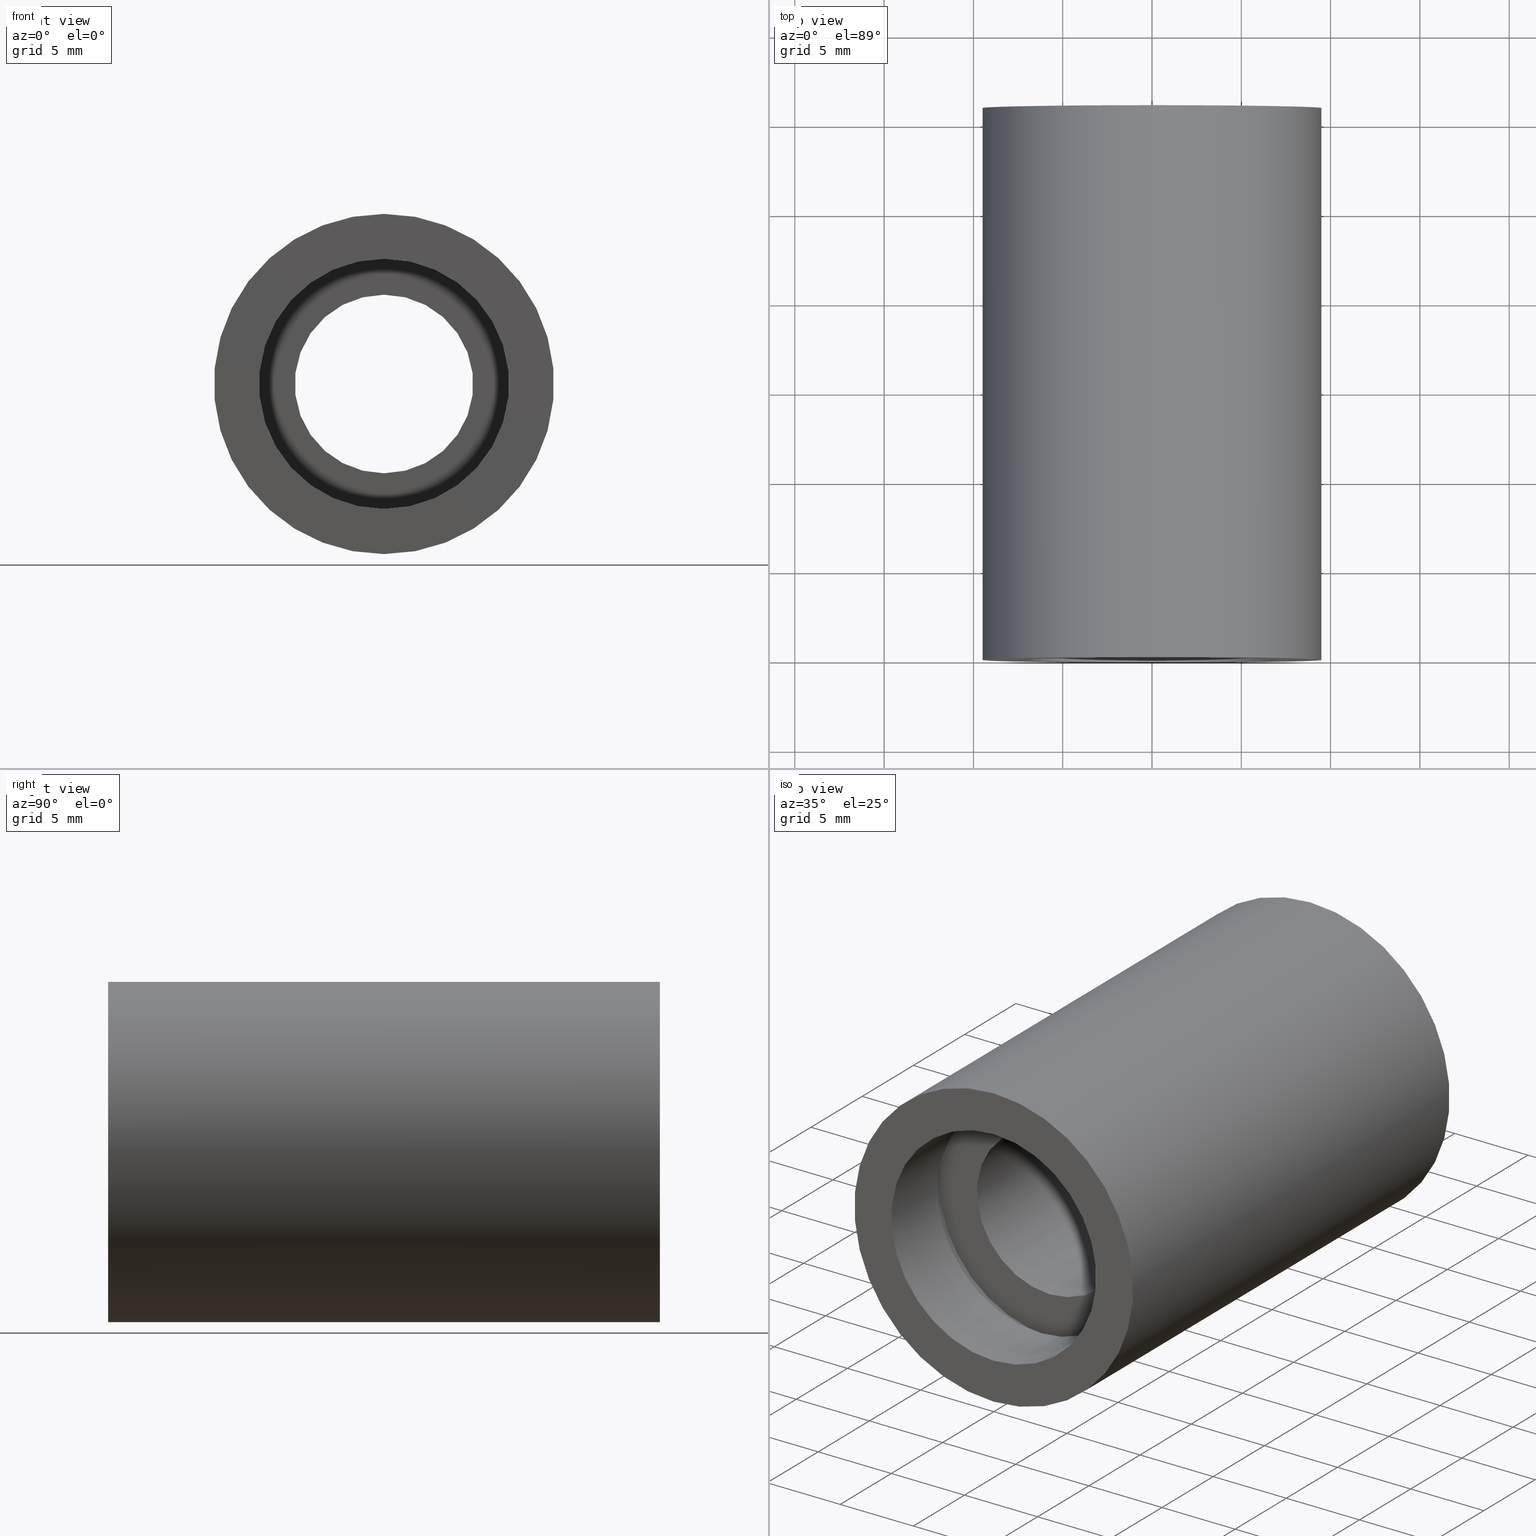
[diagram: canonical four-view strip — front | top / right | iso, engineering-drawing reading convention]
A machine part, canonical four-view strip (front | top / right | iso — engineering-drawing reading convention). The complete STEP part file that produces these views, byte-faithful:
ISO-10303-21;
HEADER;
FILE_DESCRIPTION (( 'STEP AP214' ),
    '1' );
FILE_NAME ('503097.STEP',
    '2019-09-11T08:05:11',
    ( '' ),
    ( '' ),
    'SwSTEP 2.0',
    'SolidWorks 2016',
    '' );
FILE_SCHEMA (( 'AUTOMOTIVE_DESIGN' ));
ENDSEC;

DATA;
#1 = ORIENTED_EDGE ( 'NONE', *, *, #358, .T. ) ;
#2 = AXIS2_PLACEMENT_3D ( 'NONE', #259, #546, #155 ) ;
#3 = LINE ( 'NONE', #597, #397 ) ;
#4 = FACE_OUTER_BOUND ( 'NONE', #104, .T. ) ;
#5 = UNCERTAINTY_MEASURE_WITH_UNIT (LENGTH_MEASURE( 1.000000000000000100E-005 ), #175, 'distance_accuracy_value', 'NONE');
#6 = EDGE_CURVE ( 'NONE', #595, #512, #475, .T. ) ;
#7 = DIRECTION ( 'NONE',  ( -0.0000000000000000000, 1.000000000000000000, -0.0000000000000000000 ) ) ;
#8 = ORIENTED_EDGE ( 'NONE', *, *, #16, .F. ) ;
#9 = ORIENTED_EDGE ( 'NONE', *, *, #154, .F. ) ;
#10 = FILL_AREA_STYLE ('',( #251 ) ) ;
#11 = FACE_OUTER_BOUND ( 'NONE', #159, .T. ) ;
#12 = CARTESIAN_POINT ( 'NONE',  ( 9.307315673519907200E-016, 4.499999999999976000, -7.600000000000019200 ) ) ;
#13 = DIRECTION ( 'NONE',  ( -0.0000000000000000000, 1.000000000000000000, 0.0000000000000000000 ) ) ;
#14 = ORIENTED_EDGE ( 'NONE', *, *, #352, .F. ) ;
#15 = ORIENTED_EDGE ( 'NONE', *, *, #604, .F. ) ;
#16 = EDGE_CURVE ( 'NONE', #404, #327, #601, .T. ) ;
#17 = CARTESIAN_POINT ( 'NONE',  ( 0.0000000000000000000, 5.499999999999976900, 7.600000000000019200 ) ) ;
#18 = DIRECTION ( 'NONE',  ( 0.0000000000000000000, 0.0000000000000000000, 1.000000000000000000 ) ) ;
#19 = AXIS2_PLACEMENT_3D ( 'NONE', #148, #486, #59 ) ;
#20 = CARTESIAN_POINT ( 'NONE',  ( 0.0000000000000000000, 4.499999999999976000, 0.0000000000000000000 ) ) ;
#21 = ORIENTED_EDGE ( 'NONE', *, *, #422, .T. ) ;
#22 = ORIENTED_EDGE ( 'NONE', *, *, #604, .T. ) ;
#23 = ORIENTED_EDGE ( 'NONE', *, *, #257, .F. ) ;
#24 = ADVANCED_FACE ( 'NONE', ( #263 ), #201, .F. ) ;
#25 = AXIS2_PLACEMENT_3D ( 'NONE', #182, #300, #437 ) ;
#26 = SURFACE_SIDE_STYLE ('',( #421 ) ) ;
#27 = ADVANCED_FACE ( 'NONE', ( #4 ), #334, .F. ) ;
#28 = DIRECTION ( 'NONE',  ( -0.0000000000000000000, 1.000000000000000000, -0.0000000000000000000 ) ) ;
#29 = EDGE_CURVE ( 'NONE', #476, #35, #462, .T. ) ;
#30 = PRESENTATION_LAYER_ASSIGNMENT (  '', '', ( #543 ) ) ;
#31 = DIRECTION ( 'NONE',  ( -0.0000000000000000000, 1.000000000000000000, -0.0000000000000000000 ) ) ;
#32 = CARTESIAN_POINT ( 'NONE',  ( 0.0000000000000000000, 5.499999999999976900, 0.0000000000000000000 ) ) ;
#33 = VECTOR ( 'NONE', #523, 1000.000000000000000 ) ;
#34 = EDGE_CURVE ( 'NONE', #52, #388, #561, .T. ) ;
#35 = VERTEX_POINT ( 'NONE', #507 ) ;
#36 = ORIENTED_EDGE ( 'NONE', *, *, #342, .T. ) ;
#37 = ORIENTED_EDGE ( 'NONE', *, *, #16, .T. ) ;
#38 = VECTOR ( 'NONE', #42, 1000.000000000000000 ) ;
#39 = CARTESIAN_POINT ( 'NONE',  ( 0.0000000000000000000, 0.0000000000000000000, 0.0000000000000000000 ) ) ;
#40 = DIRECTION ( 'NONE',  ( -0.0000000000000000000, 1.000000000000000000, -0.0000000000000000000 ) ) ;
#41 = CIRCLE ( 'NONE', #516, 7.600000000000019200 ) ;
#42 = DIRECTION ( 'NONE',  ( -0.0000000000000000000, 1.000000000000000000, -0.0000000000000000000 ) ) ;
#43 =( NAMED_UNIT ( * ) SI_UNIT ( $, .STERADIAN. ) SOLID_ANGLE_UNIT ( ) );
#44 = EDGE_LOOP ( 'NONE', ( #15, #427, #318, #623 ) ) ;
#45 = CIRCLE ( 'NONE', #2, 7.200000000000015300 ) ;
#46 = PRESENTATION_STYLE_ASSIGNMENT (( #464 ) ) ;
#47 = EDGE_CURVE ( 'NONE', #281, #136, #81, .T. ) ;
#48 = AXIS2_PLACEMENT_3D ( 'NONE', #82, #555, #308 ) ;
#49 = MANIFOLD_SOLID_BREP ( '��ת1', #105 ) ;
#50 = CARTESIAN_POINT ( 'NONE',  ( 7.200000000000014400, 30.89999999999998400, 0.0000000000000000000 ) ) ;
#51 = EDGE_LOOP ( 'NONE', ( #458, #215, #588, #137 ) ) ;
#52 = VERTEX_POINT ( 'NONE', #603 ) ;
#53 = PRESENTATION_LAYER_ASSIGNMENT (  '', '', ( #609 ) ) ;
#54 = CYLINDRICAL_SURFACE ( 'NONE', #489, 7.000000000000020400 ) ;
#55 = LINE ( 'NONE', #276, #38 ) ;
#56 = CARTESIAN_POINT ( 'NONE',  ( 0.0000000000000000000, 30.89999999999998400, 0.0000000000000000000 ) ) ;
#57 = LINE ( 'NONE', #206, #256 ) ;
#58 = LINE ( 'NONE', #613, #299 ) ;
#59 = DIRECTION ( 'NONE',  ( 0.0000000000000000000, 0.0000000000000000000, 1.000000000000000000 ) ) ;
#60 = ORIENTED_EDGE ( 'NONE', *, *, #589, .T. ) ;
#61 = UNCERTAINTY_MEASURE_WITH_UNIT (LENGTH_MEASURE( 1.000000000000000100E-005 ), #85, 'distance_accuracy_value', 'NONE');
#62 = CARTESIAN_POINT ( 'NONE',  ( 0.0000000000000000000, 4.499999999999976000, 0.0000000000000000000 ) ) ;
#63 = MECHANICAL_DESIGN_GEOMETRIC_PRESENTATION_REPRESENTATION (  '', ( #543 ), #287 ) ;
#64 = FACE_OUTER_BOUND ( 'NONE', #566, .T. ) ;
#65 = CARTESIAN_POINT ( 'NONE',  ( 0.0000000000000000000, 5.499999999999976900, 5.000000000000019500 ) ) ;
#66 = MECHANICAL_DESIGN_GEOMETRIC_PRESENTATION_REPRESENTATION (  '', ( #481 ), #538 ) ;
#67 = CARTESIAN_POINT ( 'NONE',  ( 0.0000000000000000000, 4.499999999999976000, 7.600000000000019200 ) ) ;
#68 = CARTESIAN_POINT ( 'NONE',  ( 0.0000000000000000000, -2.775557561562891400E-014, 9.525000000000019900 ) ) ;
#69 = ORIENTED_EDGE ( 'NONE', *, *, #185, .F. ) ;
#70 = FILL_AREA_STYLE ('',( #454 ) ) ;
#71 = ORIENTED_EDGE ( 'NONE', *, *, #495, .T. ) ;
#72 = EDGE_CURVE ( 'NONE', #595, #35, #519, .T. ) ;
#73 = DIRECTION ( 'NONE',  ( 0.0000000000000000000, 0.0000000000000000000, 1.000000000000000000 ) ) ;
#74 = FACE_BOUND ( 'NONE', #444, .T. ) ;
#75 =( LENGTH_UNIT ( ) NAMED_UNIT ( * ) SI_UNIT ( .MILLI., .METRE. ) );
#76 = DIRECTION ( 'NONE',  ( 0.0000000000000000000, 0.0000000000000000000, 1.000000000000000000 ) ) ;
#77 = DIRECTION ( 'NONE',  ( -0.0000000000000000000, 1.000000000000000000, -0.0000000000000000000 ) ) ;
#78 = AXIS2_PLACEMENT_3D ( 'NONE', #321, #93, #466 ) ;
#79 = PRESENTATION_STYLE_ASSIGNMENT (( #439 ) ) ;
#80 = CIRCLE ( 'NONE', #292, 5.000000000000019500 ) ;
#81 = CIRCLE ( 'NONE', #482, 7.600000000000019200 ) ;
#82 = CARTESIAN_POINT ( 'NONE',  ( 0.0000000000000000000, 161.3761669434274500, 0.0000000000000000000 ) ) ;
#83 = DIRECTION ( 'NONE',  ( 0.0000000000000000000, 0.0000000000000000000, 1.000000000000000000 ) ) ;
#84 = MECHANICAL_DESIGN_GEOMETRIC_PRESENTATION_REPRESENTATION (  '', ( #571 ), #452 ) ;
#85 =( LENGTH_UNIT ( ) NAMED_UNIT ( * ) SI_UNIT ( .MILLI., .METRE. ) );
#86 = SURFACE_SIDE_STYLE ('',( #127 ) ) ;
#87 = ORIENTED_EDGE ( 'NONE', *, *, #433, .T. ) ;
#88 = LINE ( 'NONE', #550, #527 ) ;
#89 = MECHANICAL_DESIGN_GEOMETRIC_PRESENTATION_REPRESENTATION (  '', ( #609 ), #303 ) ;
#90 = APPLICATION_PROTOCOL_DEFINITION ( 'draft international standard', 'automotive_design', 1998, #279 ) ;
#91 = DIRECTION ( 'NONE',  ( 1.000000000000000000, 0.0000000000000000000, 0.0000000000000000000 ) ) ;
#92 = UNCERTAINTY_MEASURE_WITH_UNIT (LENGTH_MEASURE( 1.000000000000000100E-005 ), #289, 'distance_accuracy_value', 'NONE');
#93 = DIRECTION ( 'NONE',  ( -0.0000000000000000000, 1.000000000000000000, 0.0000000000000000000 ) ) ;
#94 = AXIS2_PLACEMENT_3D ( 'NONE', #473, #97, #425 ) ;
#95 =( NAMED_UNIT ( * ) PLANE_ANGLE_UNIT ( ) SI_UNIT ( $, .RADIAN. ) );
#96 = ORIENTED_EDGE ( 'NONE', *, *, #581, .F. ) ;
#97 = DIRECTION ( 'NONE',  ( -0.0000000000000000000, 1.000000000000000000, -0.0000000000000000000 ) ) ;
#98 = PRESENTATION_STYLE_ASSIGNMENT (( #510 ) ) ;
#99 = ADVANCED_FACE ( 'NONE', ( #504 ), #528, .F. ) ;
#100 = EDGE_CURVE ( 'NONE', #111, #327, #58, .T. ) ;
#101 = FACE_OUTER_BOUND ( 'NONE', #509, .T. ) ;
#102 = CARTESIAN_POINT ( 'NONE',  ( 0.0000000000000000000, 161.3761669434274500, 7.600000000000019200 ) ) ;
#103 = AXIS2_PLACEMENT_3D ( 'NONE', #194, #114, #153 ) ;
#104 = EDGE_LOOP ( 'NONE', ( #596, #22, #60, #575 ) ) ;
#105 = CLOSED_SHELL ( 'NONE', ( #618, #521, #270, #27, #554, #310, #162, #180, #322, #591, #350, #402, #549, #24, #207, #99, #210, #323 ) ) ;
#106 = DIRECTION ( 'NONE',  ( 0.0000000000000000000, -1.000000000000000000, 0.0000000000000000000 ) ) ;
#107 = CIRCLE ( 'NONE', #606, 5.000000000000019500 ) ;
#108 =( GEOMETRIC_REPRESENTATION_CONTEXT ( 3 ) GLOBAL_UNCERTAINTY_ASSIGNED_CONTEXT ( ( #92 ) ) GLOBAL_UNIT_ASSIGNED_CONTEXT ( ( #289, #286, #43 ) ) REPRESENTATION_CONTEXT ( 'NONE', 'WORKASPACE' ) );
#109 = SURFACE_SIDE_STYLE ('',( #407 ) ) ;
#110 = FILL_AREA_STYLE ('',( #531 ) ) ;
#111 = VERTEX_POINT ( 'NONE', #624 ) ;
#112 =( LENGTH_UNIT ( ) NAMED_UNIT ( * ) SI_UNIT ( .MILLI., .METRE. ) );
#113 = ORIENTED_EDGE ( 'NONE', *, *, #29, .F. ) ;
#114 = DIRECTION ( 'NONE',  ( -0.0000000000000000000, 1.000000000000000000, -0.0000000000000000000 ) ) ;
#115 = FACE_BOUND ( 'NONE', #217, .T. ) ;
#116 = DIRECTION ( 'NONE',  ( -0.0000000000000000000, 1.000000000000000000, -0.0000000000000000000 ) ) ;
#117 = VERTEX_POINT ( 'NONE', #570 ) ;
#118 = ORIENTED_EDGE ( 'NONE', *, *, #520, .T. ) ;
#119 = EDGE_CURVE ( 'NONE', #267, #337, #168, .T. ) ;
#120 =( GEOMETRIC_REPRESENTATION_CONTEXT ( 3 ) GLOBAL_UNCERTAINTY_ASSIGNED_CONTEXT ( ( #61 ) ) GLOBAL_UNIT_ASSIGNED_CONTEXT ( ( #85, #229, #372 ) ) REPRESENTATION_CONTEXT ( 'NONE', 'WORKASPACE' ) );
#121 = CARTESIAN_POINT ( 'NONE',  ( 6.123233995736789000E-016, 25.39999999999997700, -5.000000000000019500 ) ) ;
#122 = CARTESIAN_POINT ( 'NONE',  ( 0.0000000000000000000, 161.3761669434274500, 0.0000000000000000000 ) ) ;
#123 = DIRECTION ( 'NONE',  ( -0.0000000000000000000, 1.000000000000000000, -0.0000000000000000000 ) ) ;
#124 = ORIENTED_EDGE ( 'NONE', *, *, #72, .F. ) ;
#125 = DIRECTION ( 'NONE',  ( -0.0000000000000000000, 1.000000000000000000, -0.0000000000000000000 ) ) ;
#126 = LINE ( 'NONE', #343, #357 ) ;
#127 = SURFACE_STYLE_FILL_AREA ( #367 ) ;
#128 =( NAMED_UNIT ( * ) SI_UNIT ( $, .STERADIAN. ) SOLID_ANGLE_UNIT ( ) );
#129 = AXIS2_PLACEMENT_3D ( 'NONE', #212, #351, #359 ) ;
#130 = PRODUCT_DEFINITION ( 'δ֪', '', #174, #293 ) ;
#131 = CARTESIAN_POINT ( 'NONE',  ( 8.817456953860961000E-016, 26.39999999999997700, -7.200000000000015300 ) ) ;
#132 = DIRECTION ( 'NONE',  ( -0.0000000000000000000, 1.000000000000000000, -0.0000000000000000000 ) ) ;
#133 = VERTEX_POINT ( 'NONE', #474 ) ;
#134 = AXIS2_PLACEMENT_3D ( 'NONE', #544, #262, #18 ) ;
#135 = SURFACE_STYLE_FILL_AREA ( #355 ) ;
#136 = VERTEX_POINT ( 'NONE', #240 ) ;
#137 = ORIENTED_EDGE ( 'NONE', *, *, #358, .F. ) ;
#138 = APPLICATION_CONTEXT ( 'automotive_design' ) ;
#139 = FACE_OUTER_BOUND ( 'NONE', #434, .T. ) ;
#140 = DIRECTION ( 'NONE',  ( 0.0000000000000000000, 0.0000000000000000000, 1.000000000000000000 ) ) ;
#141 = CIRCLE ( 'NONE', #578, 9.525000000000019900 ) ;
#142 = PRESENTATION_LAYER_ASSIGNMENT (  '', '', ( #571 ) ) ;
#143 = CARTESIAN_POINT ( 'NONE',  ( 0.0000000000000000000, 161.3761669434274500, 7.600000000000019200 ) ) ;
#144 = DIRECTION ( 'NONE',  ( -0.0000000000000000000, 1.000000000000000000, -0.0000000000000000000 ) ) ;
#145 = PRESENTATION_STYLE_ASSIGNMENT (( #417 ) ) ;
#146 = EDGE_CURVE ( 'NONE', #213, #572, #239, .T. ) ;
#147 = CARTESIAN_POINT ( 'NONE',  ( 0.0000000000000000000, 26.39999999999997700, 0.0000000000000000000 ) ) ;
#148 = CARTESIAN_POINT ( 'NONE',  ( 0.0000000000000000000, 161.3761669434274500, 0.0000000000000000000 ) ) ;
#149 =( NAMED_UNIT ( * ) PLANE_ANGLE_UNIT ( ) SI_UNIT ( $, .RADIAN. ) );
#150 = ORIENTED_EDGE ( 'NONE', *, *, #621, .T. ) ;
#151 = CARTESIAN_POINT ( 'NONE',  ( 9.307315673519907200E-016, 25.39999999999997700, -7.600000000000019200 ) ) ;
#152 = FACE_OUTER_BOUND ( 'NONE', #484, .T. ) ;
#153 = DIRECTION ( 'NONE',  ( 0.0000000000000000000, 0.0000000000000000000, 1.000000000000000000 ) ) ;
#154 = EDGE_CURVE ( 'NONE', #233, #547, #41, .T. ) ;
#155 = DIRECTION ( 'NONE',  ( 0.0000000000000000000, 0.0000000000000000000, 1.000000000000000000 ) ) ;
#156 = PRODUCT_RELATED_PRODUCT_CATEGORY ( 'part', '', ( #582 ) ) ;
#157 = AXIS2_PLACEMENT_3D ( 'NONE', #266, #28, #450 ) ;
#158 = DIRECTION ( 'NONE',  ( -0.0000000000000000000, 1.000000000000000000, -0.0000000000000000000 ) ) ;
#159 = EDGE_LOOP ( 'NONE', ( #124, #580, #394, #605 ) ) ;
#160 = ORIENTED_EDGE ( 'NONE', *, *, #352, .T. ) ;
#161 = EDGE_CURVE ( 'NONE', #136, #233, #471, .T. ) ;
#162 = ADVANCED_FACE ( 'NONE', ( #101, #340 ), #282, .F. ) ;
#163 = ORIENTED_EDGE ( 'NONE', *, *, #621, .F. ) ;
#164 = DIRECTION ( 'NONE',  ( -0.0000000000000000000, 1.000000000000000000, -0.0000000000000000000 ) ) ;
#165 = COLOUR_RGB ( '',1.000000000000000000, 1.000000000000000000, 1.000000000000000000 ) ;
#166 = CYLINDRICAL_SURFACE ( 'NONE', #19, 9.525000000000019900 ) ;
#167 = CARTESIAN_POINT ( 'NONE',  ( 0.0000000000000000000, 26.39999999999997700, 0.0000000000000000000 ) ) ;
#168 = CIRCLE ( 'NONE', #231, 5.000000000000019500 ) ;
#169 =( NAMED_UNIT ( * ) PLANE_ANGLE_UNIT ( ) SI_UNIT ( $, .RADIAN. ) );
#170 = SURFACE_STYLE_USAGE ( .BOTH. , #414 ) ;
#171 = ORIENTED_EDGE ( 'NONE', *, *, #146, .F. ) ;
#172 = CARTESIAN_POINT ( 'NONE',  ( 0.0000000000000000000, 30.89999999999998400, 0.0000000000000000000 ) ) ;
#173 = EDGE_CURVE ( 'NONE', #111, #467, #455, .T. ) ;
#174 = PRODUCT_DEFINITION_FORMATION_WITH_SPECIFIED_SOURCE ( '�κ�', '', #582, .NOT_KNOWN. ) ;
#175 =( LENGTH_UNIT ( ) NAMED_UNIT ( * ) SI_UNIT ( .MILLI., .METRE. ) );
#176 = UNCERTAINTY_MEASURE_WITH_UNIT (LENGTH_MEASURE( 1.000000000000000100E-005 ), #112, 'distance_accuracy_value', 'NONE');
#177 = ORIENTED_EDGE ( 'NONE', *, *, #34, .F. ) ;
#178 = CYLINDRICAL_SURFACE ( 'NONE', #48, 7.200000000000015300 ) ;
#179 = FACE_OUTER_BOUND ( 'NONE', #51, .T. ) ;
#180 = ADVANCED_FACE ( 'NONE', ( #247 ), #377, .T. ) ;
#181 = DIRECTION ( 'NONE',  ( 0.0000000000000000000, 0.0000000000000000000, 1.000000000000000000 ) ) ;
#182 = CARTESIAN_POINT ( 'NONE',  ( 5.000000000000019500, 5.499999999999983100, 0.0000000000000000000 ) ) ;
#183 = ORIENTED_EDGE ( 'NONE', *, *, #185, .T. ) ;
#184 = SHAPE_DEFINITION_REPRESENTATION ( #205, #364 ) ;
#185 = EDGE_CURVE ( 'NONE', #382, #117, #80, .T. ) ;
#186 = FACE_OUTER_BOUND ( 'NONE', #381, .T. ) ;
#187 = DIRECTION ( 'NONE',  ( -0.0000000000000000000, 1.000000000000000000, -0.0000000000000000000 ) ) ;
#188 = PLANE ( 'NONE',  #214 ) ;
#189 = AXIS2_PLACEMENT_3D ( 'NONE', #557, #31, #76 ) ;
#190 = EDGE_LOOP ( 'NONE', ( #344, #243, #71, #302 ) ) ;
#191 = ORIENTED_EDGE ( 'NONE', *, *, #173, .T. ) ;
#192 =( NAMED_UNIT ( * ) SI_UNIT ( $, .STERADIAN. ) SOLID_ANGLE_UNIT ( ) );
#193 = EDGE_CURVE ( 'NONE', #429, #388, #390, .T. ) ;
#194 = CARTESIAN_POINT ( 'NONE',  ( 0.0000000000000000000, -2.775557561562891400E-014, 0.0000000000000000000 ) ) ;
#195 = CIRCLE ( 'NONE', #103, 7.000000000000020400 ) ;
#196 = CARTESIAN_POINT ( 'NONE',  ( 0.0000000000000000000, 161.3761669434274500, 0.0000000000000000000 ) ) ;
#197 = DIRECTION ( 'NONE',  ( -0.0000000000000000000, 1.000000000000000000, -0.0000000000000000000 ) ) ;
#198 = LINE ( 'NONE', #436, #304 ) ;
#199 = AXIS2_PLACEMENT_3D ( 'NONE', #248, #106, #385 ) ;
#200 = DIRECTION ( 'NONE',  ( 0.0000000000000000000, 0.0000000000000000000, 1.000000000000000000 ) ) ;
#201 = CYLINDRICAL_SURFACE ( 'NONE', #277, 5.000000000000019500 ) ;
#202 = DIRECTION ( 'NONE',  ( 0.0000000000000000000, 0.0000000000000000000, 1.000000000000000000 ) ) ;
#203 = PRESENTATION_LAYER_ASSIGNMENT (  '', '', ( #440 ) ) ;
#204 = ORIENTED_EDGE ( 'NONE', *, *, #119, .F. ) ;
#205 = PRODUCT_DEFINITION_SHAPE ( 'NONE', 'NONE',  #130 ) ;
#206 = CARTESIAN_POINT ( 'NONE',  ( 0.0000000000000000000, 161.3761669434274500, 5.000000000000019500 ) ) ;
#207 = ADVANCED_FACE ( 'NONE', ( #537, #408 ), #284, .F. ) ;
#208 = AXIS2_PLACEMENT_3D ( 'NONE', #39, #511, #91 ) ;
#209 = CARTESIAN_POINT ( 'NONE',  ( 0.0000000000000000000, 4.499999999999976000, 0.0000000000000000000 ) ) ;
#210 = ADVANCED_FACE ( 'NONE', ( #115, #186 ), #291, .F. ) ;
#211 = FILL_AREA_STYLE ('',( #361 ) ) ;
#212 = CARTESIAN_POINT ( 'NONE',  ( 0.0000000000000000000, -2.775557561562891400E-014, 0.0000000000000000000 ) ) ;
#213 = VERTEX_POINT ( 'NONE', #249 ) ;
#214 = AXIS2_PLACEMENT_3D ( 'NONE', #50, #333, #336 ) ;
#215 = ORIENTED_EDGE ( 'NONE', *, *, #314, .T. ) ;
#216 =( LENGTH_UNIT ( ) NAMED_UNIT ( * ) SI_UNIT ( .MILLI., .METRE. ) );
#217 = EDGE_LOOP ( 'NONE', ( #113, #317 ) ) ;
#218 = DIRECTION ( 'NONE',  ( -0.0000000000000000000, 1.000000000000000000, -0.0000000000000000000 ) ) ;
#219 = AXIS2_PLACEMENT_3D ( 'NONE', #505, #306, #307 ) ;
#220 = PRESENTATION_LAYER_ASSIGNMENT (  '', '', ( #500 ) ) ;
#221 = CARTESIAN_POINT ( 'NONE',  ( 0.0000000000000000000, 161.3761669434274500, 0.0000000000000000000 ) ) ;
#222 = DIRECTION ( 'NONE',  ( 0.0000000000000000000, 0.0000000000000000000, 1.000000000000000000 ) ) ;
#223 = FILL_AREA_STYLE ('',( #459 ) ) ;
#224 = DIRECTION ( 'NONE',  ( -0.0000000000000000000, 1.000000000000000000, -0.0000000000000000000 ) ) ;
#225 = ORIENTED_EDGE ( 'NONE', *, *, #193, .F. ) ;
#226 = AXIS2_PLACEMENT_3D ( 'NONE', #353, #123, #313 ) ;
#227 = UNCERTAINTY_MEASURE_WITH_UNIT (LENGTH_MEASURE( 1.000000000000000100E-005 ), #271, 'distance_accuracy_value', 'NONE');
#228 = PRESENTATION_STYLE_ASSIGNMENT (( #170 ) ) ;
#229 =( NAMED_UNIT ( * ) PLANE_ANGLE_UNIT ( ) SI_UNIT ( $, .RADIAN. ) );
#230 = DIRECTION ( 'NONE',  ( 0.0000000000000000000, 0.0000000000000000000, 1.000000000000000000 ) ) ;
#231 = AXIS2_PLACEMENT_3D ( 'NONE', #428, #40, #469 ) ;
#232 = DIRECTION ( 'NONE',  ( -0.0000000000000000000, 1.000000000000000000, -0.0000000000000000000 ) ) ;
#233 = VERTEX_POINT ( 'NONE', #533 ) ;
#234 = CARTESIAN_POINT ( 'NONE',  ( 0.0000000000000000000, 161.3761669434274500, 0.0000000000000000000 ) ) ;
#235 = EDGE_LOOP ( 'NONE', ( #435, #69, #1, #478 ) ) ;
#236 = AXIS2_PLACEMENT_3D ( 'NONE', #449, #592, #409 ) ;
#237 = FACE_OUTER_BOUND ( 'NONE', #354, .T. ) ;
#238 = DIRECTION ( 'NONE',  ( 0.0000000000000000000, 0.0000000000000000000, 1.000000000000000000 ) ) ;
#239 = CIRCLE ( 'NONE', #265, 7.200000000000015300 ) ;
#240 = CARTESIAN_POINT ( 'NONE',  ( 0.0000000000000000000, 25.39999999999997700, 7.600000000000019200 ) ) ;
#241 = AXIS2_PLACEMENT_3D ( 'NONE', #196, #579, #577 ) ;
#242 = DIRECTION ( 'NONE',  ( 0.0000000000000000000, 0.0000000000000000000, 1.000000000000000000 ) ) ;
#243 = ORIENTED_EDGE ( 'NONE', *, *, #72, .T. ) ;
#244 = VERTEX_POINT ( 'NONE', #576 ) ;
#245 = EDGE_CURVE ( 'NONE', #512, #476, #198, .T. ) ;
#246 = CARTESIAN_POINT ( 'NONE',  ( 0.0000000000000000000, 25.39999999999997700, 5.000000000000019500 ) ) ;
#247 = FACE_OUTER_BOUND ( 'NONE', #371, .T. ) ;
#248 = CARTESIAN_POINT ( 'NONE',  ( 7.000000000000020400, 4.499999999999983100, 0.0000000000000000000 ) ) ;
#249 = CARTESIAN_POINT ( 'NONE',  ( 0.0000000000000000000, 26.39999999999997700, 7.200000000000015300 ) ) ;
#250 = ORIENTED_EDGE ( 'NONE', *, *, #34, .T. ) ;
#251 = FILL_AREA_STYLE_COLOUR ( '', #536 ) ;
#252 = EDGE_LOOP ( 'NONE', ( #403, #498, #150, #96 ) ) ;
#253 = CIRCLE ( 'NONE', #157, 9.525000000000019900 ) ;
#254 = AXIS2_PLACEMENT_3D ( 'NONE', #348, #13, #583 ) ;
#255 =( NAMED_UNIT ( * ) PLANE_ANGLE_UNIT ( ) SI_UNIT ( $, .RADIAN. ) );
#256 = VECTOR ( 'NONE', #305, 1000.000000000000000 ) ;
#257 = EDGE_CURVE ( 'NONE', #133, #244, #559, .T. ) ;
#258 = EDGE_LOOP ( 'NONE', ( #23, #163 ) ) ;
#259 = CARTESIAN_POINT ( 'NONE',  ( 0.0000000000000000000, 26.39999999999997700, 0.0000000000000000000 ) ) ;
#260 = COLOUR_RGB ( '',1.000000000000000000, 1.000000000000000000, 1.000000000000000000 ) ;
#261 = COLOUR_RGB ( '',1.000000000000000000, 1.000000000000000000, 1.000000000000000000 ) ;
#262 = DIRECTION ( 'NONE',  ( -0.0000000000000000000, 1.000000000000000000, -0.0000000000000000000 ) ) ;
#263 = FACE_OUTER_BOUND ( 'NONE', #235, .T. ) ;
#264 = SURFACE_STYLE_USAGE ( .BOTH. , #401 ) ;
#265 = AXIS2_PLACEMENT_3D ( 'NONE', #431, #187, #140 ) ;
#266 = CARTESIAN_POINT ( 'NONE',  ( 0.0000000000000000000, 30.89999999999998400, 0.0000000000000000000 ) ) ;
#267 = VERTEX_POINT ( 'NONE', #246 ) ;
#268 = ORIENTED_EDGE ( 'NONE', *, *, #565, .T. ) ;
#269 = FACE_OUTER_BOUND ( 'NONE', #44, .T. ) ;
#270 = ADVANCED_FACE ( 'NONE', ( #179 ), #584, .F. ) ;
#271 =( LENGTH_UNIT ( ) NAMED_UNIT ( * ) SI_UNIT ( .MILLI., .METRE. ) );
#272 = DIRECTION ( 'NONE',  ( 0.0000000000000000000, 0.0000000000000000000, 1.000000000000000000 ) ) ;
#273 = ORIENTED_EDGE ( 'NONE', *, *, #319, .T. ) ;
#274 = DIRECTION ( 'NONE',  ( -0.0000000000000000000, 1.000000000000000000, -0.0000000000000000000 ) ) ;
#275 = CIRCLE ( 'NONE', #311, 7.000000000000020400 ) ;
#276 = CARTESIAN_POINT ( 'NONE',  ( 9.307315673519907200E-016, 161.3761669434274500, -7.600000000000019200 ) ) ;
#277 = AXIS2_PLACEMENT_3D ( 'NONE', #599, #77, #447 ) ;
#278 = PRESENTATION_LAYER_ASSIGNMENT (  '', '', ( #345 ) ) ;
#279 = APPLICATION_CONTEXT ( 'automotive_design' ) ;
#280 = DIRECTION ( 'NONE',  ( 0.0000000000000000000, 0.0000000000000000000, 1.000000000000000000 ) ) ;
#281 = VERTEX_POINT ( 'NONE', #151 ) ;
#282 = PLANE ( 'NONE',  #78 ) ;
#283 = CIRCLE ( 'NONE', #552, 7.600000000000019200 ) ;
#284 = PLANE ( 'NONE',  #25 ) ;
#285 = DIRECTION ( 'NONE',  ( -0.0000000000000000000, 1.000000000000000000, -0.0000000000000000000 ) ) ;
#286 =( NAMED_UNIT ( * ) PLANE_ANGLE_UNIT ( ) SI_UNIT ( $, .RADIAN. ) );
#287 =( GEOMETRIC_REPRESENTATION_CONTEXT ( 3 ) GLOBAL_UNCERTAINTY_ASSIGNED_CONTEXT ( ( #5 ) ) GLOBAL_UNIT_ASSIGNED_CONTEXT ( ( #175, #369, #320 ) ) REPRESENTATION_CONTEXT ( 'NONE', 'WORKASPACE' ) );
#288 = SURFACE_STYLE_FILL_AREA ( #223 ) ;
#289 =( LENGTH_UNIT ( ) NAMED_UNIT ( * ) SI_UNIT ( .MILLI., .METRE. ) );
#290 = PRESENTATION_STYLE_ASSIGNMENT (( #264 ) ) ;
#291 = PLANE ( 'NONE',  #199 ) ;
#292 = AXIS2_PLACEMENT_3D ( 'NONE', #376, #426, #238 ) ;
#293 = PRODUCT_DEFINITION_CONTEXT ( 'detailed design', #138, 'design' ) ;
#294 = DIRECTION ( 'NONE',  ( -0.0000000000000000000, 1.000000000000000000, -0.0000000000000000000 ) ) ;
#295 = VERTEX_POINT ( 'NONE', #12 ) ;
#296 = AXIS2_PLACEMENT_3D ( 'NONE', #622, #144, #242 ) ;
#297 = DIRECTION ( 'NONE',  ( -0.0000000000000000000, 1.000000000000000000, -0.0000000000000000000 ) ) ;
#298 = VECTOR ( 'NONE', #393, 1000.000000000000000 ) ;
#299 = VECTOR ( 'NONE', #326, 1000.000000000000000 ) ;
#300 = DIRECTION ( 'NONE',  ( -0.0000000000000000000, 1.000000000000000000, 0.0000000000000000000 ) ) ;
#301 = SURFACE_STYLE_USAGE ( .BOTH. , #329 ) ;
#302 = ORIENTED_EDGE ( 'NONE', *, *, #245, .F. ) ;
#303 =( GEOMETRIC_REPRESENTATION_CONTEXT ( 3 ) GLOBAL_UNCERTAINTY_ASSIGNED_CONTEXT ( ( #176 ) ) GLOBAL_UNIT_ASSIGNED_CONTEXT ( ( #112, #255, #529 ) ) REPRESENTATION_CONTEXT ( 'NONE', 'WORKASPACE' ) );
#304 = VECTOR ( 'NONE', #297, 1000.000000000000000 ) ;
#305 = DIRECTION ( 'NONE',  ( -0.0000000000000000000, 1.000000000000000000, -0.0000000000000000000 ) ) ;
#306 = DIRECTION ( 'NONE',  ( -0.0000000000000000000, 1.000000000000000000, -0.0000000000000000000 ) ) ;
#307 = DIRECTION ( 'NONE',  ( 0.0000000000000000000, 0.0000000000000000000, 1.000000000000000000 ) ) ;
#308 = DIRECTION ( 'NONE',  ( 0.0000000000000000000, 0.0000000000000000000, 1.000000000000000000 ) ) ;
#309 = DIRECTION ( 'NONE',  ( -0.0000000000000000000, 1.000000000000000000, -0.0000000000000000000 ) ) ;
#310 = ADVANCED_FACE ( 'NONE', ( #64 ), #166, .T. ) ;
#311 = AXIS2_PLACEMENT_3D ( 'NONE', #209, #125, #412 ) ;
#312 = ORIENTED_EDGE ( 'NONE', *, *, #589, .F. ) ;
#313 = DIRECTION ( 'NONE',  ( 0.0000000000000000000, 0.0000000000000000000, 1.000000000000000000 ) ) ;
#314 = EDGE_CURVE ( 'NONE', #117, #337, #608, .T. ) ;
#315 = PRESENTATION_STYLE_ASSIGNMENT (( #301 ) ) ;
#316 = CARTESIAN_POINT ( 'NONE',  ( 9.307315673519907200E-016, 26.39999999999997700, -7.600000000000019200 ) ) ;
#317 = ORIENTED_EDGE ( 'NONE', *, *, #495, .F. ) ;
#318 = ORIENTED_EDGE ( 'NONE', *, *, #161, .T. ) ;
#319 = EDGE_CURVE ( 'NONE', #512, #595, #195, .T. ) ;
#320 =( NAMED_UNIT ( * ) SI_UNIT ( $, .STERADIAN. ) SOLID_ANGLE_UNIT ( ) );
#321 = CARTESIAN_POINT ( 'NONE',  ( 7.000000000000020400, -1.634585625335647100E-014, 0.0000000000000000000 ) ) ;
#322 = ADVANCED_FACE ( 'NONE', ( #430, #347 ), #188, .F. ) ;
#323 = ADVANCED_FACE ( 'NONE', ( #11 ), #375, .F. ) ;
#324 = CARTESIAN_POINT ( 'NONE',  ( 0.0000000000000000000, -2.775557561562891400E-014, 0.0000000000000000000 ) ) ;
#325 = COLOUR_RGB ( '',1.000000000000000000, 1.000000000000000000, 1.000000000000000000 ) ;
#326 = DIRECTION ( 'NONE',  ( -0.0000000000000000000, 1.000000000000000000, -0.0000000000000000000 ) ) ;
#327 = VERTEX_POINT ( 'NONE', #446 ) ;
#328 = STYLED_ITEM ( 'NONE', ( #46 ), #49 ) ;
#329 = SURFACE_SIDE_STYLE ('',( #600 ) ) ;
#330 = ORIENTED_EDGE ( 'NONE', *, *, #342, .F. ) ;
#331 = FACE_OUTER_BOUND ( 'NONE', #190, .T. ) ;
#332 = PRESENTATION_STYLE_ASSIGNMENT (( #497 ) ) ;
#333 = DIRECTION ( 'NONE',  ( 0.0000000000000000000, -1.000000000000000000, 0.0000000000000000000 ) ) ;
#334 = CYLINDRICAL_SURFACE ( 'NONE', #556, 7.600000000000019200 ) ;
#335 = MECHANICAL_DESIGN_GEOMETRIC_PRESENTATION_REPRESENTATION (  '', ( #500 ), #383 ) ;
#336 = DIRECTION ( 'NONE',  ( 0.0000000000000000000, -0.0000000000000000000, -1.000000000000000000 ) ) ;
#337 = VERTEX_POINT ( 'NONE', #121 ) ;
#338 = ORIENTED_EDGE ( 'NONE', *, *, #100, .F. ) ;
#339 = ORIENTED_EDGE ( 'NONE', *, *, #433, .F. ) ;
#340 = FACE_BOUND ( 'NONE', #418, .T. ) ;
#341 = DIRECTION ( 'NONE',  ( 0.0000000000000000000, 0.0000000000000000000, 1.000000000000000000 ) ) ;
#342 = EDGE_CURVE ( 'NONE', #429, #295, #283, .T. ) ;
#343 = CARTESIAN_POINT ( 'NONE',  ( 9.307315673519907200E-016, 161.3761669434274500, -7.600000000000019200 ) ) ;
#344 = ORIENTED_EDGE ( 'NONE', *, *, #6, .F. ) ;
#345 = STYLED_ITEM ( 'NONE', ( #332 ), #554 ) ;
#346 = CIRCLE ( 'NONE', #189, 7.600000000000019200 ) ;
#347 = FACE_OUTER_BOUND ( 'NONE', #386, .T. ) ;
#348 = CARTESIAN_POINT ( 'NONE',  ( 7.200000000000015300, 26.39999999999998100, 0.0000000000000000000 ) ) ;
#349 = UNCERTAINTY_MEASURE_WITH_UNIT (LENGTH_MEASURE( 1.000000000000000100E-005 ), #483, 'distance_accuracy_value', 'NONE');
#350 = ADVANCED_FACE ( 'NONE', ( #152, #74 ), #496, .F. ) ;
#351 = DIRECTION ( 'NONE',  ( -0.0000000000000000000, 1.000000000000000000, -0.0000000000000000000 ) ) ;
#352 = EDGE_CURVE ( 'NONE', #295, #429, #568, .T. ) ;
#353 = CARTESIAN_POINT ( 'NONE',  ( 0.0000000000000000000, 161.3761669434274500, 0.0000000000000000000 ) ) ;
#354 = EDGE_LOOP ( 'NONE', ( #14, #87, #250, #225 ) ) ;
#355 = FILL_AREA_STYLE ('',( #602 ) ) ;
#356 = ORIENTED_EDGE ( 'NONE', *, *, #413, .F. ) ;
#357 = VECTOR ( 'NONE', #542, 1000.000000000000000 ) ;
#358 = EDGE_CURVE ( 'NONE', #382, #267, #57, .T. ) ;
#359 = DIRECTION ( 'NONE',  ( 0.0000000000000000000, 0.0000000000000000000, 1.000000000000000000 ) ) ;
#360 = DIRECTION ( 'NONE',  ( -0.0000000000000000000, 1.000000000000000000, -0.0000000000000000000 ) ) ;
#361 = FILL_AREA_STYLE_COLOUR ( '', #165 ) ;
#362 = ORIENTED_EDGE ( 'NONE', *, *, #368, .F. ) ;
#363 = EDGE_LOOP ( 'NONE', ( #339, #330, #485, #617 ) ) ;
#364 = ADVANCED_BREP_SHAPE_REPRESENTATION ( '503097', ( #49, #208 ), #120 ) ;
#365 = FILL_AREA_STYLE ('',( #610 ) ) ;
#366 = CYLINDRICAL_SURFACE ( 'NONE', #378, 7.600000000000019200 ) ;
#367 = FILL_AREA_STYLE ('',( #415 ) ) ;
#368 = EDGE_CURVE ( 'NONE', #337, #267, #551, .T. ) ;
#369 =( NAMED_UNIT ( * ) PLANE_ANGLE_UNIT ( ) SI_UNIT ( $, .RADIAN. ) );
#370 = DIRECTION ( 'NONE',  ( 0.0000000000000000000, 0.0000000000000000000, 1.000000000000000000 ) ) ;
#371 = EDGE_LOOP ( 'NONE', ( #338, #191, #574, #451 ) ) ;
#372 =( NAMED_UNIT ( * ) SI_UNIT ( $, .STERADIAN. ) SOLID_ANGLE_UNIT ( ) );
#373 = FACE_BOUND ( 'NONE', #499, .T. ) ;
#374 = SURFACE_SIDE_STYLE ('',( #525 ) ) ;
#375 = CYLINDRICAL_SURFACE ( 'NONE', #491, 7.000000000000020400 ) ;
#376 = CARTESIAN_POINT ( 'NONE',  ( 0.0000000000000000000, 5.499999999999976900, 0.0000000000000000000 ) ) ;
#377 = CYLINDRICAL_SURFACE ( 'NONE', #94, 9.525000000000019900 ) ;
#378 = AXIS2_PLACEMENT_3D ( 'NONE', #445, #116, #202 ) ;
#379 = DIRECTION ( 'NONE',  ( -0.0000000000000000000, 1.000000000000000000, -0.0000000000000000000 ) ) ;
#380 = EDGE_CURVE ( 'NONE', #572, #244, #423, .T. ) ;
#381 = EDGE_LOOP ( 'NONE', ( #36, #160 ) ) ;
#382 = VERTEX_POINT ( 'NONE', #65 ) ;
#383 =( GEOMETRIC_REPRESENTATION_CONTEXT ( 3 ) GLOBAL_UNCERTAINTY_ASSIGNED_CONTEXT ( ( #524 ) ) GLOBAL_UNIT_ASSIGNED_CONTEXT ( ( #216, #410, #453 ) ) REPRESENTATION_CONTEXT ( 'NONE', 'WORKASPACE' ) );
#384 = ORIENTED_EDGE ( 'NONE', *, *, #541, .T. ) ;
#385 = DIRECTION ( 'NONE',  ( 0.0000000000000000000, -0.0000000000000000000, -1.000000000000000000 ) ) ;
#386 = EDGE_LOOP ( 'NONE', ( #37, #118 ) ) ;
#387 = MECHANICAL_DESIGN_GEOMETRIC_PRESENTATION_REPRESENTATION (  '', ( #440 ), #573 ) ;
#388 = VERTEX_POINT ( 'NONE', #17 ) ;
#389 = DIRECTION ( 'NONE',  ( -0.0000000000000000000, 1.000000000000000000, -0.0000000000000000000 ) ) ;
#390 = LINE ( 'NONE', #143, #619 ) ;
#391 = CARTESIAN_POINT ( 'NONE',  ( 6.123233995736789000E-016, 161.3761669434274500, -5.000000000000019500 ) ) ;
#392 = UNCERTAINTY_MEASURE_WITH_UNIT (LENGTH_MEASURE( 1.000000000000000100E-005 ), #75, 'distance_accuracy_value', 'NONE');
#393 = DIRECTION ( 'NONE',  ( -0.0000000000000000000, 1.000000000000000000, -0.0000000000000000000 ) ) ;
#394 = ORIENTED_EDGE ( 'NONE', *, *, #245, .T. ) ;
#395 = AXIS2_PLACEMENT_3D ( 'NONE', #20, #590, #73 ) ;
#396 = CARTESIAN_POINT ( 'NONE',  ( 0.0000000000000000000, 30.89999999999998400, 9.525000000000019900 ) ) ;
#397 = VECTOR ( 'NONE', #560, 1000.000000000000000 ) ;
#398 = COLOUR_RGB ( '',1.000000000000000000, 1.000000000000000000, 1.000000000000000000 ) ;
#399 = AXIS2_PLACEMENT_3D ( 'NONE', #558, #360, #222 ) ;
#400 = CARTESIAN_POINT ( 'NONE',  ( 0.0000000000000000000, -2.775557561562891400E-014, 7.000000000000020400 ) ) ;
#401 = SURFACE_SIDE_STYLE ('',( #472 ) ) ;
#402 = ADVANCED_FACE ( 'NONE', ( #269 ), #366, .F. ) ;
#403 = ORIENTED_EDGE ( 'NONE', *, *, #422, .F. ) ;
#404 = VERTEX_POINT ( 'NONE', #396 ) ;
#405 = PLANE ( 'NONE',  #236 ) ;
#406 = FACE_OUTER_BOUND ( 'NONE', #252, .T. ) ;
#407 = SURFACE_STYLE_FILL_AREA ( #10 ) ;
#408 = FACE_BOUND ( 'NONE', #513, .T. ) ;
#409 = DIRECTION ( 'NONE',  ( 0.0000000000000000000, -0.0000000000000000000, -1.000000000000000000 ) ) ;
#410 =( NAMED_UNIT ( * ) PLANE_ANGLE_UNIT ( ) SI_UNIT ( $, .RADIAN. ) );
#411 = ORIENTED_EDGE ( 'NONE', *, *, #100, .T. ) ;
#412 = DIRECTION ( 'NONE',  ( 0.0000000000000000000, 0.0000000000000000000, 1.000000000000000000 ) ) ;
#413 = EDGE_CURVE ( 'NONE', #467, #111, #141, .T. ) ;
#414 = SURFACE_SIDE_STYLE ('',( #135 ) ) ;
#415 = FILL_AREA_STYLE_COLOUR ( '', #620 ) ;
#416 =( LENGTH_UNIT ( ) NAMED_UNIT ( * ) SI_UNIT ( .MILLI., .METRE. ) );
#417 = SURFACE_STYLE_USAGE ( .BOTH. , #424 ) ;
#418 = EDGE_LOOP ( 'NONE', ( #273, #548 ) ) ;
#419 = ORIENTED_EDGE ( 'NONE', *, *, #380, .F. ) ;
#420 = CIRCLE ( 'NONE', #593, 7.200000000000014400 ) ;
#421 = SURFACE_STYLE_FILL_AREA ( #211 ) ;
#422 = EDGE_CURVE ( 'NONE', #572, #213, #45, .T. ) ;
#423 = LINE ( 'NONE', #441, #298 ) ;
#424 = SURFACE_SIDE_STYLE ('',( #288 ) ) ;
#425 = DIRECTION ( 'NONE',  ( 0.0000000000000000000, 0.0000000000000000000, 1.000000000000000000 ) ) ;
#426 = DIRECTION ( 'NONE',  ( -0.0000000000000000000, 1.000000000000000000, -0.0000000000000000000 ) ) ;
#427 = ORIENTED_EDGE ( 'NONE', *, *, #541, .F. ) ;
#428 = CARTESIAN_POINT ( 'NONE',  ( 0.0000000000000000000, 25.39999999999997700, 0.0000000000000000000 ) ) ;
#429 = VERTEX_POINT ( 'NONE', #67 ) ;
#430 = FACE_BOUND ( 'NONE', #258, .T. ) ;
#431 = CARTESIAN_POINT ( 'NONE',  ( 0.0000000000000000000, 26.39999999999997700, 0.0000000000000000000 ) ) ;
#432 = VECTOR ( 'NONE', #611, 1000.000000000000000 ) ;
#433 = EDGE_CURVE ( 'NONE', #295, #52, #126, .T. ) ;
#434 = EDGE_LOOP ( 'NONE', ( #419, #171, #532, #587 ) ) ;
#435 = ORIENTED_EDGE ( 'NONE', *, *, #314, .F. ) ;
#436 = CARTESIAN_POINT ( 'NONE',  ( 0.0000000000000000000, 161.3761669434274500, 7.000000000000020400 ) ) ;
#437 = DIRECTION ( 'NONE',  ( 0.0000000000000000000, 0.0000000000000000000, 1.000000000000000000 ) ) ;
#438 = AXIS2_PLACEMENT_3D ( 'NONE', #167, #501, #594 ) ;
#439 = SURFACE_STYLE_USAGE ( .BOTH. , #109 ) ;
#440 = STYLED_ITEM ( 'NONE', ( #290 ), #24 ) ;
#441 = CARTESIAN_POINT ( 'NONE',  ( 8.817456953860961000E-016, 161.3761669434274500, -7.200000000000015300 ) ) ;
#442 = AXIS2_PLACEMENT_3D ( 'NONE', #221, #309, #370 ) ;
#443 = CARTESIAN_POINT ( 'NONE',  ( 0.0000000000000000000, 4.499999999999976000, 7.000000000000020400 ) ) ;
#444 = EDGE_LOOP ( 'NONE', ( #468, #21 ) ) ;
#445 = CARTESIAN_POINT ( 'NONE',  ( 0.0000000000000000000, 161.3761669434274500, 0.0000000000000000000 ) ) ;
#446 = CARTESIAN_POINT ( 'NONE',  ( 1.166476076187856400E-015, 30.89999999999998400, -9.525000000000019900 ) ) ;
#447 = DIRECTION ( 'NONE',  ( 0.0000000000000000000, 0.0000000000000000000, 1.000000000000000000 ) ) ;
#448 = AXIS2_PLACEMENT_3D ( 'NONE', #32, #224, #280 ) ;
#449 = CARTESIAN_POINT ( 'NONE',  ( 5.000000000000019500, 25.39999999999998100, 0.0000000000000000000 ) ) ;
#450 = DIRECTION ( 'NONE',  ( 0.0000000000000000000, 0.0000000000000000000, 1.000000000000000000 ) ) ;
#451 = ORIENTED_EDGE ( 'NONE', *, *, #520, .F. ) ;
#452 =( GEOMETRIC_REPRESENTATION_CONTEXT ( 3 ) GLOBAL_UNCERTAINTY_ASSIGNED_CONTEXT ( ( #563 ) ) GLOBAL_UNIT_ASSIGNED_CONTEXT ( ( #416, #95, #463 ) ) REPRESENTATION_CONTEXT ( 'NONE', 'WORKASPACE' ) );
#453 =( NAMED_UNIT ( * ) SI_UNIT ( $, .STERADIAN. ) SOLID_ANGLE_UNIT ( ) );
#454 = FILL_AREA_STYLE_COLOUR ( '', #398 ) ;
#455 = CIRCLE ( 'NONE', #586, 9.525000000000019900 ) ;
#456 =( NAMED_UNIT ( * ) PLANE_ANGLE_UNIT ( ) SI_UNIT ( $, .RADIAN. ) );
#457 = APPLICATION_PROTOCOL_DEFINITION ( 'draft international standard', 'automotive_design', 1998, #138 ) ;
#458 = ORIENTED_EDGE ( 'NONE', *, *, #565, .F. ) ;
#459 = FILL_AREA_STYLE_COLOUR ( '', #598 ) ;
#460 = MECHANICAL_DESIGN_GEOMETRIC_PRESENTATION_REPRESENTATION (  '', ( #328 ), #108 ) ;
#461 = CIRCLE ( 'NONE', #134, 7.600000000000019200 ) ;
#462 = CIRCLE ( 'NONE', #399, 7.000000000000020400 ) ;
#463 =( NAMED_UNIT ( * ) SI_UNIT ( $, .STERADIAN. ) SOLID_ANGLE_UNIT ( ) );
#464 = SURFACE_STYLE_USAGE ( .BOTH. , #86 ) ;
#465 = MECHANICAL_DESIGN_GEOMETRIC_PRESENTATION_REPRESENTATION (  '', ( #345 ), #522 ) ;
#466 = DIRECTION ( 'NONE',  ( 0.0000000000000000000, 0.0000000000000000000, 1.000000000000000000 ) ) ;
#467 = VERTEX_POINT ( 'NONE', #68 ) ;
#468 = ORIENTED_EDGE ( 'NONE', *, *, #146, .T. ) ;
#469 = DIRECTION ( 'NONE',  ( 0.0000000000000000000, 0.0000000000000000000, 1.000000000000000000 ) ) ;
#470 = PRESENTATION_LAYER_ASSIGNMENT (  '', '', ( #481 ) ) ;
#471 = LINE ( 'NONE', #102, #33 ) ;
#472 = SURFACE_STYLE_FILL_AREA ( #70 ) ;
#473 = CARTESIAN_POINT ( 'NONE',  ( 0.0000000000000000000, 161.3761669434274500, 0.0000000000000000000 ) ) ;
#474 = CARTESIAN_POINT ( 'NONE',  ( 0.0000000000000000000, 30.89999999999998400, 7.200000000000014400 ) ) ;
#475 = CIRCLE ( 'NONE', #129, 7.000000000000020400 ) ;
#476 = VERTEX_POINT ( 'NONE', #443 ) ;
#477 = DIRECTION ( 'NONE',  ( -0.0000000000000000000, 1.000000000000000000, -0.0000000000000000000 ) ) ;
#478 = ORIENTED_EDGE ( 'NONE', *, *, #119, .T. ) ;
#479 = DIRECTION ( 'NONE',  ( 0.0000000000000000000, 0.0000000000000000000, 1.000000000000000000 ) ) ;
#480 = VECTOR ( 'NONE', #7, 1000.000000000000000 ) ;
#481 = STYLED_ITEM ( 'NONE', ( #315 ), #270 ) ;
#482 = AXIS2_PLACEMENT_3D ( 'NONE', #567, #274, #83 ) ;
#483 =( LENGTH_UNIT ( ) NAMED_UNIT ( * ) SI_UNIT ( .MILLI., .METRE. ) );
#484 = EDGE_LOOP ( 'NONE', ( #9, #312 ) ) ;
#485 = ORIENTED_EDGE ( 'NONE', *, *, #193, .T. ) ;
#486 = DIRECTION ( 'NONE',  ( -0.0000000000000000000, 1.000000000000000000, -0.0000000000000000000 ) ) ;
#487 = EDGE_CURVE ( 'NONE', #388, #52, #461, .T. ) ;
#488 = CARTESIAN_POINT ( 'NONE',  ( 0.0000000000000000000, 25.39999999999997700, 0.0000000000000000000 ) ) ;
#489 = AXIS2_PLACEMENT_3D ( 'NONE', #234, #616, #612 ) ;
#490 = CARTESIAN_POINT ( 'NONE',  ( 0.0000000000000000000, -2.775557561562891400E-014, 0.0000000000000000000 ) ) ;
#491 = AXIS2_PLACEMENT_3D ( 'NONE', #535, #389, #585 ) ;
#492 = DIRECTION ( 'NONE',  ( 0.0000000000000000000, 0.0000000000000000000, 1.000000000000000000 ) ) ;
#493 = ORIENTED_EDGE ( 'NONE', *, *, #173, .F. ) ;
#494 = CIRCLE ( 'NONE', #438, 7.600000000000019200 ) ;
#495 = EDGE_CURVE ( 'NONE', #35, #476, #275, .T. ) ;
#496 = PLANE ( 'NONE',  #254 ) ;
#497 = SURFACE_STYLE_USAGE ( .BOTH. , #26 ) ;
#498 = ORIENTED_EDGE ( 'NONE', *, *, #380, .T. ) ;
#499 = EDGE_LOOP ( 'NONE', ( #204, #362 ) ) ;
#500 = STYLED_ITEM ( 'NONE', ( #228 ), #591 ) ;
#501 = DIRECTION ( 'NONE',  ( -0.0000000000000000000, 1.000000000000000000, -0.0000000000000000000 ) ) ;
#502 =( NAMED_UNIT ( * ) SI_UNIT ( $, .STERADIAN. ) SOLID_ANGLE_UNIT ( ) );
#503 = CYLINDRICAL_SURFACE ( 'NONE', #226, 7.600000000000019200 ) ;
#504 = FACE_OUTER_BOUND ( 'NONE', #363, .T. ) ;
#505 = CARTESIAN_POINT ( 'NONE',  ( 0.0000000000000000000, 30.89999999999998400, 0.0000000000000000000 ) ) ;
#506 = EDGE_LOOP ( 'NONE', ( #384, #614 ) ) ;
#507 = CARTESIAN_POINT ( 'NONE',  ( 8.572527594031496900E-016, 4.499999999999976000, -7.000000000000020400 ) ) ;
#508 = EDGE_CURVE ( 'NONE', #467, #404, #88, .T. ) ;
#509 = EDGE_LOOP ( 'NONE', ( #356, #493 ) ) ;
#510 = SURFACE_STYLE_USAGE ( .BOTH. , #374 ) ;
#511 = DIRECTION ( 'NONE',  ( 0.0000000000000000000, 0.0000000000000000000, 1.000000000000000000 ) ) ;
#512 = VERTEX_POINT ( 'NONE', #400 ) ;
#513 = EDGE_LOOP ( 'NONE', ( #183, #268 ) ) ;
#514 = DIRECTION ( 'NONE',  ( 0.0000000000000000000, 0.0000000000000000000, 1.000000000000000000 ) ) ;
#515 = ORIENTED_EDGE ( 'NONE', *, *, #413, .T. ) ;
#516 = AXIS2_PLACEMENT_3D ( 'NONE', #147, #477, #514 ) ;
#517 = CYLINDRICAL_SURFACE ( 'NONE', #442, 7.200000000000015300 ) ;
#518 = DIRECTION ( 'NONE',  ( 0.0000000000000000000, 0.0000000000000000000, 1.000000000000000000 ) ) ;
#519 = LINE ( 'NONE', #562, #432 ) ;
#520 = EDGE_CURVE ( 'NONE', #327, #404, #253, .T. ) ;
#521 = ADVANCED_FACE ( 'NONE', ( #237 ), #503, .F. ) ;
#522 =( GEOMETRIC_REPRESENTATION_CONTEXT ( 3 ) GLOBAL_UNCERTAINTY_ASSIGNED_CONTEXT ( ( #227 ) ) GLOBAL_UNIT_ASSIGNED_CONTEXT ( ( #271, #456, #128 ) ) REPRESENTATION_CONTEXT ( 'NONE', 'WORKASPACE' ) );
#523 = DIRECTION ( 'NONE',  ( -0.0000000000000000000, 1.000000000000000000, -0.0000000000000000000 ) ) ;
#524 = UNCERTAINTY_MEASURE_WITH_UNIT (LENGTH_MEASURE( 1.000000000000000100E-005 ), #216, 'distance_accuracy_value', 'NONE');
#525 = SURFACE_STYLE_FILL_AREA ( #365 ) ;
#526 = AXIS2_PLACEMENT_3D ( 'NONE', #488, #197, #492 ) ;
#527 = VECTOR ( 'NONE', #218, 1000.000000000000000 ) ;
#528 = CYLINDRICAL_SURFACE ( 'NONE', #296, 7.600000000000019200 ) ;
#529 =( NAMED_UNIT ( * ) SI_UNIT ( $, .STERADIAN. ) SOLID_ANGLE_UNIT ( ) );
#530 = PRESENTATION_LAYER_ASSIGNMENT (  '', '', ( #328 ) ) ;
#531 = FILL_AREA_STYLE_COLOUR ( '', #325 ) ;
#532 = ORIENTED_EDGE ( 'NONE', *, *, #581, .T. ) ;
#533 = CARTESIAN_POINT ( 'NONE',  ( 0.0000000000000000000, 26.39999999999997700, 7.600000000000019200 ) ) ;
#534 = FACE_OUTER_BOUND ( 'NONE', #506, .T. ) ;
#535 = CARTESIAN_POINT ( 'NONE',  ( 0.0000000000000000000, 161.3761669434274500, 0.0000000000000000000 ) ) ;
#536 = COLOUR_RGB ( '',1.000000000000000000, 1.000000000000000000, 1.000000000000000000 ) ;
#537 = FACE_OUTER_BOUND ( 'NONE', #564, .T. ) ;
#538 =( GEOMETRIC_REPRESENTATION_CONTEXT ( 3 ) GLOBAL_UNCERTAINTY_ASSIGNED_CONTEXT ( ( #349 ) ) GLOBAL_UNIT_ASSIGNED_CONTEXT ( ( #483, #149, #192 ) ) REPRESENTATION_CONTEXT ( 'NONE', 'WORKASPACE' ) );
#539 = ORIENTED_EDGE ( 'NONE', *, *, #487, .F. ) ;
#540 = DIRECTION ( 'NONE',  ( -0.0000000000000000000, 1.000000000000000000, -0.0000000000000000000 ) ) ;
#541 = EDGE_CURVE ( 'NONE', #136, #281, #346, .T. ) ;
#542 = DIRECTION ( 'NONE',  ( -0.0000000000000000000, 1.000000000000000000, -0.0000000000000000000 ) ) ;
#543 = STYLED_ITEM ( 'NONE', ( #145 ), #364 ) ;
#544 = CARTESIAN_POINT ( 'NONE',  ( 0.0000000000000000000, 5.499999999999976900, 0.0000000000000000000 ) ) ;
#545 = AXIS2_PLACEMENT_3D ( 'NONE', #56, #294, #479 ) ;
#546 = DIRECTION ( 'NONE',  ( -0.0000000000000000000, 1.000000000000000000, -0.0000000000000000000 ) ) ;
#547 = VERTEX_POINT ( 'NONE', #316 ) ;
#548 = ORIENTED_EDGE ( 'NONE', *, *, #6, .T. ) ;
#549 = ADVANCED_FACE ( 'NONE', ( #373, #534 ), #405, .F. ) ;
#550 = CARTESIAN_POINT ( 'NONE',  ( 0.0000000000000000000, 161.3761669434274500, 9.525000000000019900 ) ) ;
#551 = CIRCLE ( 'NONE', #526, 5.000000000000019500 ) ;
#552 = AXIS2_PLACEMENT_3D ( 'NONE', #62, #158, #341 ) ;
#553 = CARTESIAN_POINT ( 'NONE',  ( 0.0000000000000000000, 5.499999999999976900, 0.0000000000000000000 ) ) ;
#554 = ADVANCED_FACE ( 'NONE', ( #406 ), #178, .F. ) ;
#555 = DIRECTION ( 'NONE',  ( -0.0000000000000000000, 1.000000000000000000, -0.0000000000000000000 ) ) ;
#556 = AXIS2_PLACEMENT_3D ( 'NONE', #122, #164, #230 ) ;
#557 = CARTESIAN_POINT ( 'NONE',  ( 0.0000000000000000000, 25.39999999999997700, 0.0000000000000000000 ) ) ;
#558 = CARTESIAN_POINT ( 'NONE',  ( 0.0000000000000000000, 4.499999999999976000, 0.0000000000000000000 ) ) ;
#559 = CIRCLE ( 'NONE', #545, 7.200000000000014400 ) ;
#560 = DIRECTION ( 'NONE',  ( -0.0000000000000000000, 1.000000000000000000, -0.0000000000000000000 ) ) ;
#561 = CIRCLE ( 'NONE', #448, 7.600000000000019200 ) ;
#562 = CARTESIAN_POINT ( 'NONE',  ( 8.572527594031496900E-016, 161.3761669434274500, -7.000000000000020400 ) ) ;
#563 = UNCERTAINTY_MEASURE_WITH_UNIT (LENGTH_MEASURE( 1.000000000000000100E-005 ), #416, 'distance_accuracy_value', 'NONE');
#564 = EDGE_LOOP ( 'NONE', ( #539, #177 ) ) ;
#565 = EDGE_CURVE ( 'NONE', #117, #382, #107, .T. ) ;
#566 = EDGE_LOOP ( 'NONE', ( #515, #411, #8, #615 ) ) ;
#567 = CARTESIAN_POINT ( 'NONE',  ( 0.0000000000000000000, 25.39999999999997700, 0.0000000000000000000 ) ) ;
#568 = CIRCLE ( 'NONE', #395, 7.600000000000019200 ) ;
#569 = CARTESIAN_POINT ( 'NONE',  ( 8.572527594031496900E-016, -2.775557561562891400E-014, -7.000000000000020400 ) ) ;
#570 = CARTESIAN_POINT ( 'NONE',  ( 6.123233995736789000E-016, 5.499999999999976900, -5.000000000000019500 ) ) ;
#571 = STYLED_ITEM ( 'NONE', ( #98 ), #618 ) ;
#572 = VERTEX_POINT ( 'NONE', #131 ) ;
#573 =( GEOMETRIC_REPRESENTATION_CONTEXT ( 3 ) GLOBAL_UNCERTAINTY_ASSIGNED_CONTEXT ( ( #392 ) ) GLOBAL_UNIT_ASSIGNED_CONTEXT ( ( #75, #169, #502 ) ) REPRESENTATION_CONTEXT ( 'NONE', 'WORKASPACE' ) );
#574 = ORIENTED_EDGE ( 'NONE', *, *, #508, .T. ) ;
#575 = ORIENTED_EDGE ( 'NONE', *, *, #161, .F. ) ;
#576 = CARTESIAN_POINT ( 'NONE',  ( 8.817456953860959100E-016, 30.89999999999998400, -7.200000000000014400 ) ) ;
#577 = DIRECTION ( 'NONE',  ( 0.0000000000000000000, 0.0000000000000000000, 1.000000000000000000 ) ) ;
#578 = AXIS2_PLACEMENT_3D ( 'NONE', #490, #540, #200 ) ;
#579 = DIRECTION ( 'NONE',  ( -0.0000000000000000000, 1.000000000000000000, -0.0000000000000000000 ) ) ;
#580 = ORIENTED_EDGE ( 'NONE', *, *, #319, .F. ) ;
#581 = EDGE_CURVE ( 'NONE', #213, #133, #3, .T. ) ;
#582 = PRODUCT ( '503097', '503097', '', ( #607 ) ) ;
#583 = DIRECTION ( 'NONE',  ( 0.0000000000000000000, 0.0000000000000000000, 1.000000000000000000 ) ) ;
#584 = CYLINDRICAL_SURFACE ( 'NONE', #241, 5.000000000000019500 ) ;
#585 = DIRECTION ( 'NONE',  ( 0.0000000000000000000, 0.0000000000000000000, 1.000000000000000000 ) ) ;
#586 = AXIS2_PLACEMENT_3D ( 'NONE', #324, #379, #518 ) ;
#587 = ORIENTED_EDGE ( 'NONE', *, *, #257, .T. ) ;
#588 = ORIENTED_EDGE ( 'NONE', *, *, #368, .T. ) ;
#589 = EDGE_CURVE ( 'NONE', #547, #233, #494, .T. ) ;
#590 = DIRECTION ( 'NONE',  ( -0.0000000000000000000, 1.000000000000000000, -0.0000000000000000000 ) ) ;
#591 = ADVANCED_FACE ( 'NONE', ( #139 ), #517, .F. ) ;
#592 = DIRECTION ( 'NONE',  ( 0.0000000000000000000, -1.000000000000000000, 0.0000000000000000000 ) ) ;
#593 = AXIS2_PLACEMENT_3D ( 'NONE', #172, #232, #181 ) ;
#594 = DIRECTION ( 'NONE',  ( 0.0000000000000000000, 0.0000000000000000000, 1.000000000000000000 ) ) ;
#595 = VERTEX_POINT ( 'NONE', #569 ) ;
#596 = ORIENTED_EDGE ( 'NONE', *, *, #47, .F. ) ;
#597 = CARTESIAN_POINT ( 'NONE',  ( 0.0000000000000000000, 161.3761669434274500, 7.200000000000015300 ) ) ;
#598 = COLOUR_RGB ( '',1.000000000000000000, 1.000000000000000000, 1.000000000000000000 ) ;
#599 = CARTESIAN_POINT ( 'NONE',  ( 0.0000000000000000000, 161.3761669434274500, 0.0000000000000000000 ) ) ;
#600 = SURFACE_STYLE_FILL_AREA ( #110 ) ;
#601 = CIRCLE ( 'NONE', #219, 9.525000000000019900 ) ;
#602 = FILL_AREA_STYLE_COLOUR ( '', #261 ) ;
#603 = CARTESIAN_POINT ( 'NONE',  ( 9.307315673519907200E-016, 5.499999999999976900, -7.600000000000019200 ) ) ;
#604 = EDGE_CURVE ( 'NONE', #281, #547, #55, .T. ) ;
#605 = ORIENTED_EDGE ( 'NONE', *, *, #29, .T. ) ;
#606 = AXIS2_PLACEMENT_3D ( 'NONE', #553, #132, #272 ) ;
#607 = PRODUCT_CONTEXT ( 'NONE', #279, 'mechanical' ) ;
#608 = LINE ( 'NONE', #391, #480 ) ;
#609 = STYLED_ITEM ( 'NONE', ( #79 ), #323 ) ;
#610 = FILL_AREA_STYLE_COLOUR ( '', #260 ) ;
#611 = DIRECTION ( 'NONE',  ( -0.0000000000000000000, 1.000000000000000000, -0.0000000000000000000 ) ) ;
#612 = DIRECTION ( 'NONE',  ( 0.0000000000000000000, 0.0000000000000000000, 1.000000000000000000 ) ) ;
#613 = CARTESIAN_POINT ( 'NONE',  ( 1.166476076187856400E-015, 161.3761669434274500, -9.525000000000019900 ) ) ;
#614 = ORIENTED_EDGE ( 'NONE', *, *, #47, .T. ) ;
#615 = ORIENTED_EDGE ( 'NONE', *, *, #508, .F. ) ;
#616 = DIRECTION ( 'NONE',  ( -0.0000000000000000000, 1.000000000000000000, -0.0000000000000000000 ) ) ;
#617 = ORIENTED_EDGE ( 'NONE', *, *, #487, .T. ) ;
#618 = ADVANCED_FACE ( 'NONE', ( #331 ), #54, .F. ) ;
#619 = VECTOR ( 'NONE', #285, 1000.000000000000000 ) ;
#620 = COLOUR_RGB ( '',1.000000000000000000, 1.000000000000000000, 1.000000000000000000 ) ;
#621 = EDGE_CURVE ( 'NONE', #244, #133, #420, .T. ) ;
#622 = CARTESIAN_POINT ( 'NONE',  ( 0.0000000000000000000, 161.3761669434274500, 0.0000000000000000000 ) ) ;
#623 = ORIENTED_EDGE ( 'NONE', *, *, #154, .T. ) ;
#624 = CARTESIAN_POINT ( 'NONE',  ( 1.166476076187856400E-015, -2.775557561562891400E-014, -9.525000000000019900 ) ) ;
ENDSEC;
END-ISO-10303-21;
